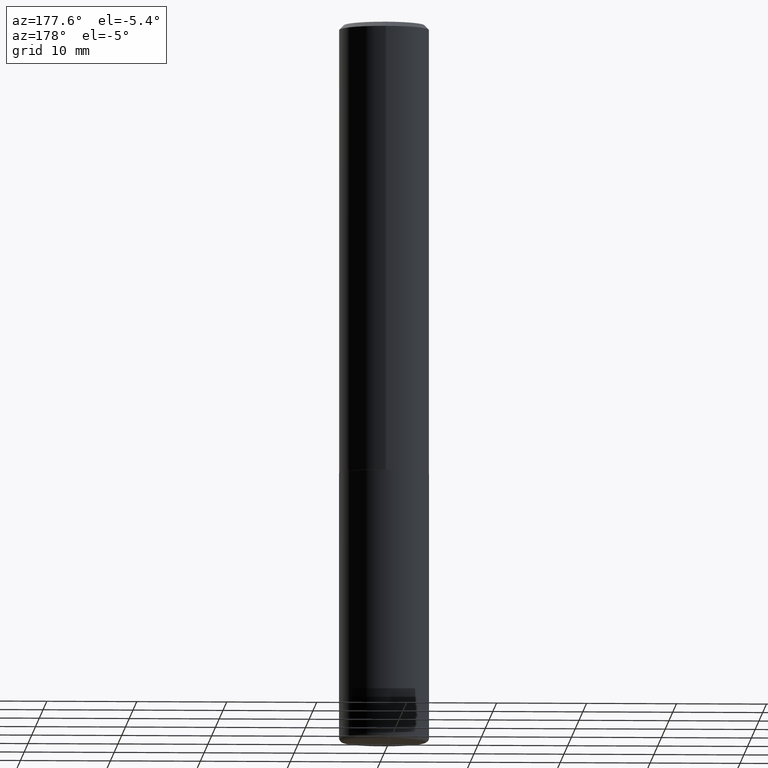
[diagram: clean part render]
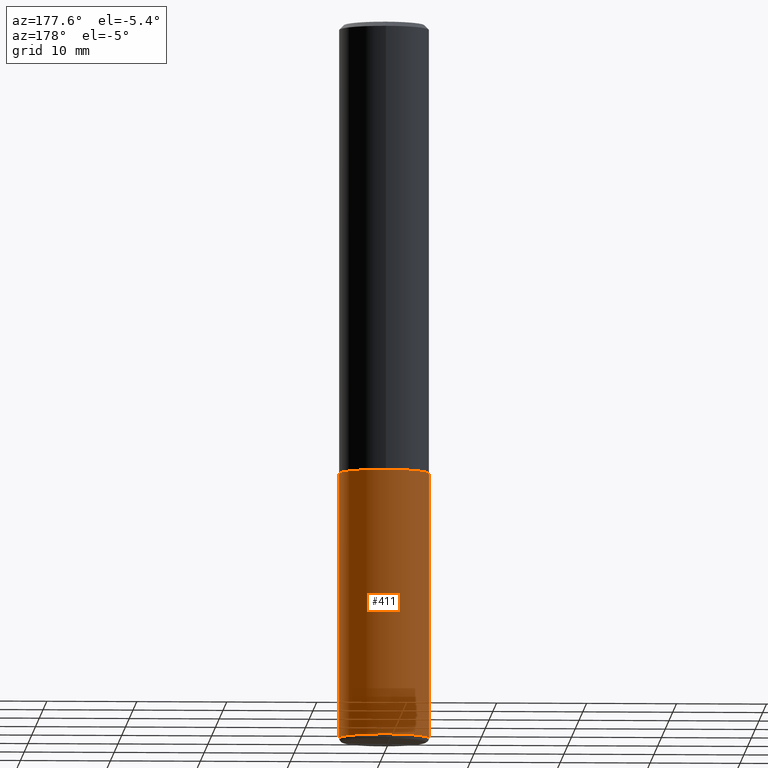
[diagram: same view with one face highlighted and labeled with its STEP entity id]
A machine part, auxiliary view. The second image highlights one B-rep face of the part: STEP entity #411.
In plain terms, the highlighted cylindrical surface (partial cylindrical patch) has radius 5 mm, axis along (-0, 0, 1).
Its self-contained STEP definition (entity closure, byte-faithful):
#19 = ORIENTED_EDGE ( 'NONE', *, *, #393, .F. ) ;
#20 = CARTESIAN_POINT ( 'NONE',  ( 0.1968499999999999694, -1.374596203102541411E-15, 9.598753983154298056E-30 ) ) ;
#53 = CARTESIAN_POINT ( 'NONE',  ( 7.654072816478859974E-29, -1.092798744244516270E-14, -3.129900000000000571 ) ) ;
#71 = CARTESIAN_POINT ( 'NONE',  ( 4.813905344975440714E-29, -6.872981015512730918E-15, -1.968499999999999694 ) ) ;
#88 = VERTEX_POINT ( 'NONE', #188 ) ;
#109 = EDGE_CURVE ( 'NONE', #314, #245, #402, .T. ) ;
#113 = CARTESIAN_POINT ( 'NONE',  ( -0.1968499999999999694, 1.398703375343756999E-15, -9.682923725166782276E-30 ) ) ;
#118 = DIRECTION ( 'NONE',  ( -2.445468806185136597E-29, 3.491481338843145583E-15, 1.000000000000000000 ) ) ;
#134 = VECTOR ( 'NONE', #341, 39.37007874015748143 ) ;
#138 = AXIS2_PLACEMENT_3D ( 'NONE', #152, #118, #184 ) ;
#152 = CARTESIAN_POINT ( 'NONE',  ( 0.000000000000000000, 0.000000000000000000, 0.000000000000000000 ) ) ;
#153 = ORIENTED_EDGE ( 'NONE', *, *, #109, .F. ) ;
#168 = DIRECTION ( 'NONE',  ( -2.445468806185136597E-29, 3.491481338843145583E-15, 1.000000000000000000 ) ) ;
#176 = ORIENTED_EDGE ( 'NONE', *, *, #359, .T. ) ;
#178 = DIRECTION ( 'NONE',  ( -2.445468806185136597E-29, 3.491481338843145583E-15, 1.000000000000000000 ) ) ;
#179 = CYLINDRICAL_SURFACE ( 'NONE', #138, 0.1968499999999999694 ) ;
#181 = LINE ( 'NONE', #20, #392 ) ;
#184 = DIRECTION ( 'NONE',  ( 1.000000000000000000, -6.982962677686266711E-15, 4.876176775795935793E-29 ) ) ;
#188 = CARTESIAN_POINT ( 'NONE',  ( -0.1968499999999999417, -9.529284067101404126E-15, -3.129900000000000571 ) ) ;
#196 = CARTESIAN_POINT ( 'NONE',  ( -0.1968500000000000250, -7.501780853635190206E-15, -1.968499999999999694 ) ) ;
#204 = DIRECTION ( 'NONE',  ( 1.000000000000000000, -6.982962677686267499E-15, 0.000000000000000000 ) ) ;
#210 = VERTEX_POINT ( 'NONE', #401 ) ;
#214 = AXIS2_PLACEMENT_3D ( 'NONE', #71, #168, #204 ) ;
#245 = VERTEX_POINT ( 'NONE', #196 ) ;
#280 = ORIENTED_EDGE ( 'NONE', *, *, #388, .T. ) ;
#301 = DIRECTION ( 'NONE',  ( 1.000000000000000000, -6.982962677686269866E-15, 0.000000000000000000 ) ) ;
#314 = VERTEX_POINT ( 'NONE', #407 ) ;
#341 = DIRECTION ( 'NONE',  ( -2.445468806185136877E-29, 3.491481338843145188E-15, 1.000000000000000000 ) ) ;
#343 = FACE_OUTER_BOUND ( 'NONE', #398, .T. ) ;
#359 = EDGE_CURVE ( 'NONE', #210, #88, #382, .T. ) ;
#360 = AXIS2_PLACEMENT_3D ( 'NONE', #53, #178, #301 ) ;
#382 = CIRCLE ( 'NONE', #360, 0.1968499999999999694 ) ;
#386 = DIRECTION ( 'NONE',  ( -2.445468806185136877E-29, 3.491481338843145188E-15, 1.000000000000000000 ) ) ;
#388 = EDGE_CURVE ( 'NONE', #88, #245, #399, .T. ) ;
#392 = VECTOR ( 'NONE', #386, 39.37007874015748143 ) ;
#393 = EDGE_CURVE ( 'NONE', #210, #314, #181, .T. ) ;
#398 = EDGE_LOOP ( 'NONE', ( #176, #280, #153, #19 ) ) ;
#399 = LINE ( 'NONE', #113, #134 ) ;
#401 = CARTESIAN_POINT ( 'NONE',  ( 0.1968499999999999417, -1.230258364554770273E-14, -3.129900000000000571 ) ) ;
#402 = CIRCLE ( 'NONE', #214, 0.1968500000000000250 ) ;
#407 = CARTESIAN_POINT ( 'NONE',  ( 0.1968500000000000250, -8.247577218615273316E-15, -1.968499999999999694 ) ) ;
#411 = ADVANCED_FACE ( 'NONE', ( #343 ), #179, .T. ) ;